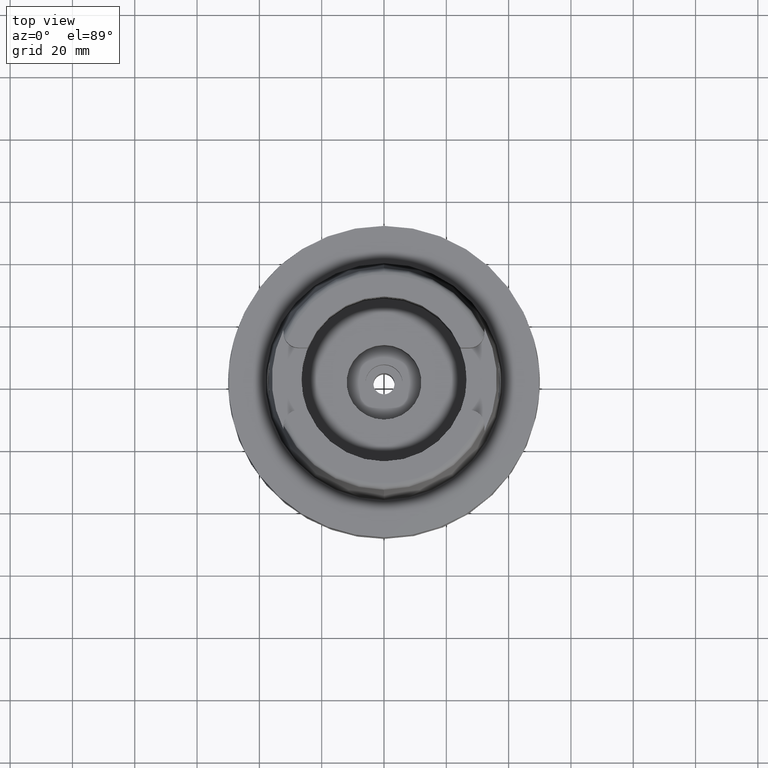
[diagram: clean part render]
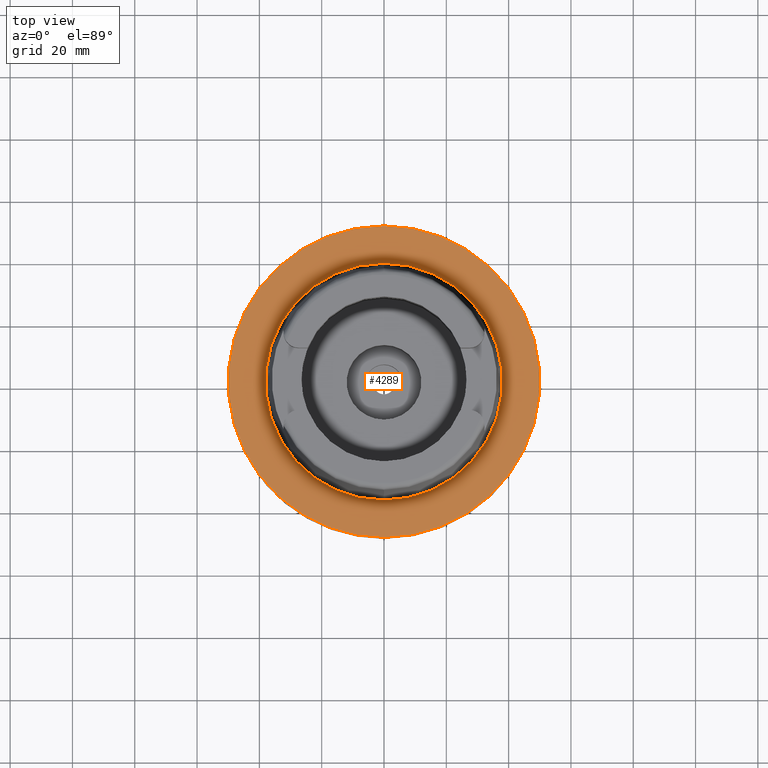
[diagram: same view with one face highlighted and labeled with its STEP entity id]
A machine part, top view. The second image highlights one B-rep face of the part: STEP entity #4289.
In plain terms, the highlighted planar face has unit normal (0, 0, 1).
Its self-contained STEP definition (entity closure, byte-faithful):
#2110=CARTESIAN_POINT('',(0.E0,0.E0,3.979039320257E-13));
#2111=DIRECTION('',(0.E0,0.E0,-1.E0));
#2112=DIRECTION('',(0.E0,-1.E0,0.E0));
#2113=AXIS2_PLACEMENT_3D('',#2110,#2111,#2112);
#2118=CARTESIAN_POINT('',(0.E0,0.E0,3.979039320257E-13));
#2119=DIRECTION('',(0.E0,0.E0,-1.E0));
#2120=DIRECTION('',(0.E0,1.E0,0.E0));
#2121=AXIS2_PLACEMENT_3D('',#2118,#2119,#2120);
#2126=CARTESIAN_POINT('',(0.E0,0.E0,1.023181539495E-12));
#2127=DIRECTION('',(0.E0,0.E0,1.E0));
#2128=DIRECTION('',(0.E0,-1.E0,0.E0));
#2129=AXIS2_PLACEMENT_3D('',#2126,#2127,#2128);
#2134=CARTESIAN_POINT('',(0.E0,0.E0,1.023181539495E-12));
#2135=DIRECTION('',(0.E0,0.E0,1.E0));
#2136=DIRECTION('',(0.E0,1.E0,0.E0));
#2137=AXIS2_PLACEMENT_3D('',#2134,#2135,#2136);
#2434=CARTESIAN_POINT('',(0.E0,-3.800001658252E1,6.821210263297E-13));
#2435=VERTEX_POINT('',#2434);
#2436=CARTESIAN_POINT('',(0.E0,3.800001658252E1,1.023181539495E-12));
#2437=VERTEX_POINT('',#2436);
#2699=CARTESIAN_POINT('',(0.E0,5.E1,2.463214817302E-13));
#2700=VERTEX_POINT('',#2699);
#2701=CARTESIAN_POINT('',(0.E0,-5.E1,3.979039320257E-13));
#2702=VERTEX_POINT('',#2701);
#4276=CARTESIAN_POINT('',(0.E0,0.E0,0.E0));
#4277=DIRECTION('',(0.E0,0.E0,1.E0));
#4278=DIRECTION('',(0.E0,1.E0,0.E0));
#4279=AXIS2_PLACEMENT_3D('',#4276,#4277,#4278);
#4280=PLANE('',#4279);
#4281=ORIENTED_EDGE('',*,*,#4041,.T.);
#4282=ORIENTED_EDGE('',*,*,#4150,.T.);
#4283=EDGE_LOOP('',(#4281,#4282));
#4284=FACE_OUTER_BOUND('',#4283,.F.);
#4285=ORIENTED_EDGE('',*,*,#2937,.T.);
#4286=ORIENTED_EDGE('',*,*,#2908,.T.);
#4287=EDGE_LOOP('',(#4285,#4286));
#4288=FACE_BOUND('',#4287,.F.);
#2114=CIRCLE('',#2113,5.E1);
#2122=CIRCLE('',#2121,5.E1);
#2130=CIRCLE('',#2129,3.800001658252E1);
#2138=CIRCLE('',#2137,3.800001658252E1);
#2908=EDGE_CURVE('',#2437,#2435,#2138,.T.);
#2937=EDGE_CURVE('',#2435,#2437,#2130,.T.);
#4041=EDGE_CURVE('',#2702,#2700,#2114,.T.);
#4150=EDGE_CURVE('',#2700,#2702,#2122,.T.);
#4289=ADVANCED_FACE('',(#4284,#4288),#4280,.T.);